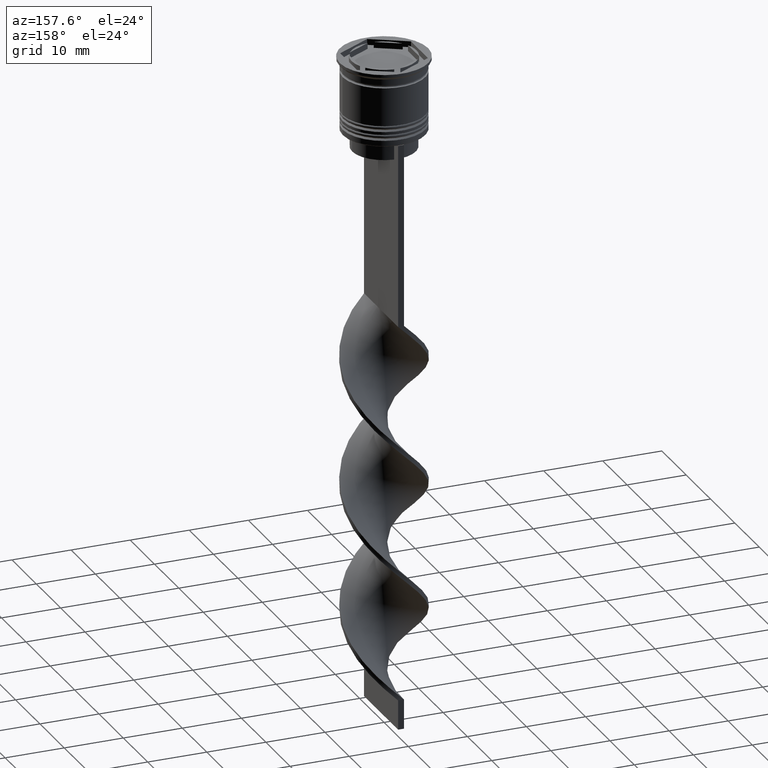
[diagram: clean part render]
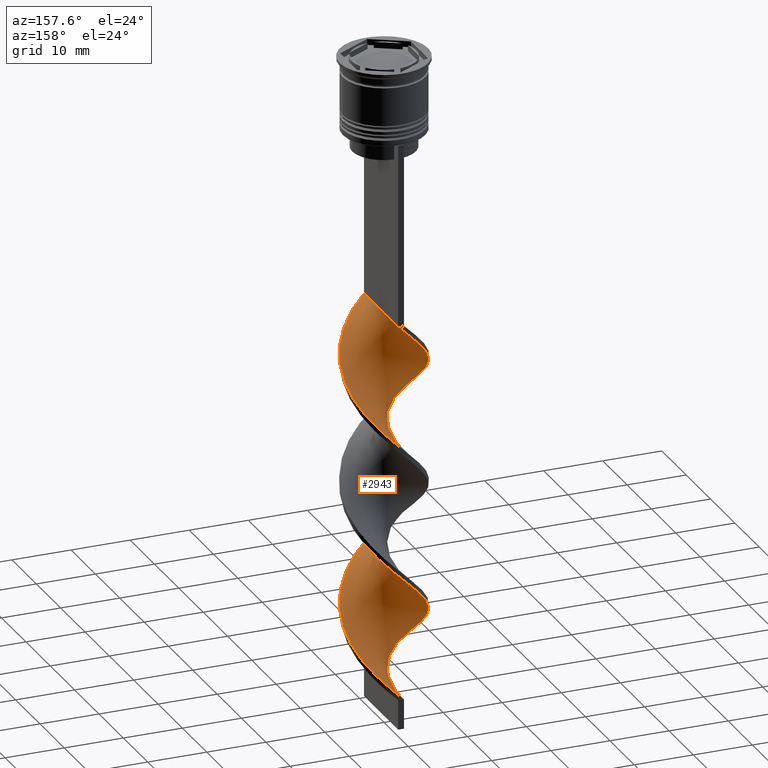
[diagram: same view with one face highlighted and labeled with its STEP entity id]
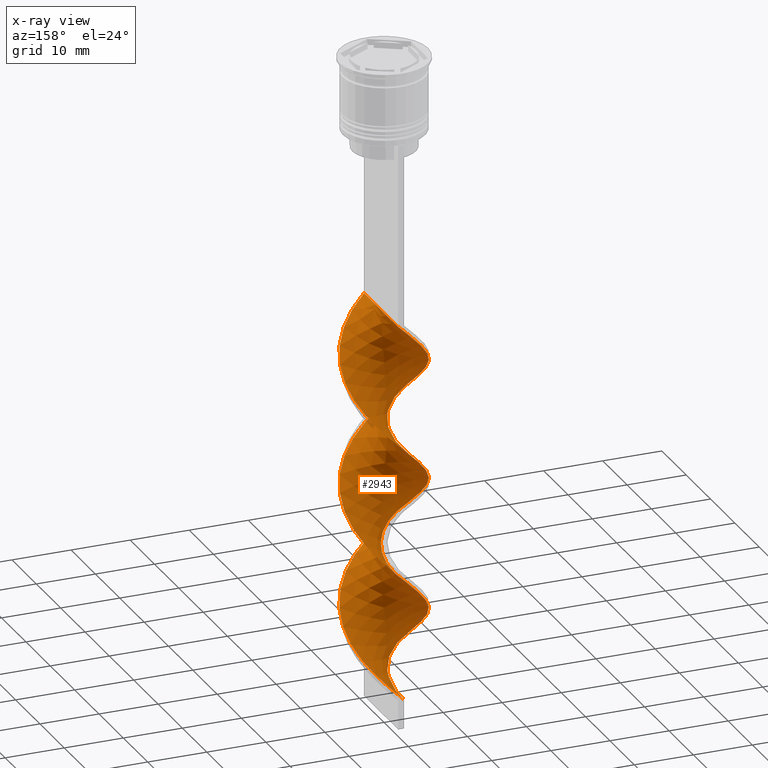
[diagram: x-ray of the same camera — body ghosted, the highlighted face saturated]
A machine part, auxiliary view. The second image highlights one B-rep face of the part: STEP entity #2943.
The next image is the same camera in x-ray: the body ghosted, the highlighted face saturated — about 0% of this face is hidden behind the body in this view.
In plain terms, the highlighted face is a freeform B-spline surface patch.
Its self-contained STEP definition (entity closure, byte-faithful):
#9 = CARTESIAN_POINT ( 'NONE',  ( 2.160680558725929679, -6.676934889838582521, -45.14102564102563520 ) ) ;
#15 = CARTESIAN_POINT ( 'NONE',  ( -4.267603233600016921, 5.571136566318108052, -91.08974358974359120 ) ) ;
#32 = CARTESIAN_POINT ( 'NONE',  ( -4.944061684284418057, 5.052955718088663062, -91.91025641025643722 ) ) ;
#46 = CARTESIAN_POINT ( 'NONE',  ( -5.476854687890019058, 4.387945160064921524, -50.06410256410256210 ) ) ;
#63 = CARTESIAN_POINT ( 'NONE',  ( -6.044919434621174759, -3.564961294171263173, -58.26923076923076650 ) ) ;
#80 = CARTESIAN_POINT ( 'NONE',  ( 4.944061684284417169, -5.052955718088663062, -70.57692307692306599 ) ) ;
#81 = CARTESIAN_POINT ( 'NONE',  ( -4.267603233600016921, 5.571136566318108052, -48.42307692307691269 ) ) ;
#90 = CARTESIAN_POINT ( 'NONE',  ( -6.044919434621171206, 3.564961294171262285, -71.39743589743588359 ) ) ;
#91 = CARTESIAN_POINT ( 'NONE',  ( 6.044919434621171206, -3.564961294171262285, -92.73076923076922640 ) ) ;
#94 = CARTESIAN_POINT ( 'NONE',  ( -4.944061684284418057, 5.052955718088663062, -49.24358974358973740 ) ) ;
#108 = CARTESIAN_POINT ( 'NONE',  ( -5.476854687890019058, 4.387945160064921524, -92.73076923076922640 ) ) ;
#111 = CARTESIAN_POINT ( 'NONE',  ( 6.967048179568297250, -1.198476987909310010, -95.19230769230769340 ) ) ;
#123 = CARTESIAN_POINT ( 'NONE',  ( 6.967048179568298139, -1.198476987909309788, -95.19230769230769340 ) ) ;
#131 = CARTESIAN_POINT ( 'NONE',  ( -6.477784105070039544, 2.830975188000776743, -72.21794871794871540 ) ) ;
#132 = EDGE_CURVE ( 'NONE', #2150, #1348, #403, .T. ) ;
#134 = CARTESIAN_POINT ( 'NONE',  ( 6.725974819057651821, 2.176550059239734658, -98.47435897435896379 ) ) ;
#150 = CARTESIAN_POINT ( 'NONE',  ( 7.009230458814037057, -0.3474023247382352353, -96.01282051282051100 ) ) ;
#154 = CARTESIAN_POINT ( 'NONE',  ( -0.3499538825558274335, -7.060710991611127696, -85.34615384615385381 ) ) ;
#166 = CARTESIAN_POINT ( 'NONE',  ( 6.722416142319168841, -2.014726087955042377, -94.37179487179486159 ) ) ;
#170 = CARTESIAN_POINT ( 'NONE',  ( 2.160680558725929679, -6.676934889838582521, -87.80769230769230660 ) ) ;
#175 = CARTESIAN_POINT ( 'NONE',  ( 2.971407234896035643, -6.414580771288298955, -88.62820512820512420 ) ) ;
#188 = CARTESIAN_POINT ( 'NONE',  ( 4.944061684284416280, 5.052955718088656845, -101.7564102564102484 ) ) ;
#195 = CARTESIAN_POINT ( 'NONE',  ( 5.016113981771114005, -4.908013908077308862, -48.42307692307691269 ) ) ;
#198 = CARTESIAN_POINT ( 'NONE',  ( -2.971407234896033422, 6.414580771288299843, -67.29487179487178139 ) ) ;
#212 = CARTESIAN_POINT ( 'NONE',  ( 5.476854687890019058, -4.387945160064921524, -71.39743589743588359 ) ) ;
#230 = CARTESIAN_POINT ( 'NONE',  ( -3.695790217132986832, -5.965830593550586869, -104.2179487179487012 ) ) ;
#255 = CARTESIAN_POINT ( 'NONE',  ( 2.971407234896040972, 6.414580771288303396, -83.70512820512820440 ) ) ;
#272 = CARTESIAN_POINT ( 'NONE',  ( 6.477784105070047538, 2.830975188000770970, -78.78205128205127039 ) ) ;
#289 = CARTESIAN_POINT ( 'NONE',  ( -6.367811255276637716, 2.949742330640459098, -94.37179487179486159 ) ) ;
#291 = CARTESIAN_POINT ( 'NONE',  ( 2.160680558725929679, -6.676934889838582521, -87.80769230769230660 ) ) ;
#306 = VECTOR ( 'NONE', #1121, 1000.000000000000000 ) ;
#311 = CARTESIAN_POINT ( 'NONE',  ( 7.051412738059782193, -0.5036723384328427588, -75.50000000000000000 ) ) ;
#329 = CARTESIAN_POINT ( 'NONE',  ( -6.009647691495618282, -3.722934602041173324, -78.78205128205127039 ) ) ;
#342 = CARTESIAN_POINT ( 'NONE',  ( 2.971407234896040528, 6.414580771288303396, -83.70512820512820440 ) ) ;
#354 = CARTESIAN_POINT ( 'NONE',  ( -2.029523600043933396, 6.771790116641159152, -45.96153846153845990 ) ) ;
#356 = CARTESIAN_POINT ( 'NONE',  ( -2.810334191479775701, 6.430553765594355653, -46.78205128205127750 ) ) ;
#387 = CARTESIAN_POINT ( 'NONE',  ( -5.612054764172298427, 4.298947400341751823, -70.57692307692306599 ) ) ;
#403 =( BOUNDED_CURVE ( )  B_SPLINE_CURVE ( 2, ( #1053, #478, #2143, #3267, #779, #2383, #195, #497, #3572, #2362, #1299, #3484, #440, #1015, #733, #3605, #2423, #3549, #2292, #3366, #1970, #1433, #2279, #3413, #1436, #1419, #1494, #3222, #3243, #198, #696, #687, #3217, #1836, #90, #131, #2344, #693, #1128, #2276, #1159, #864, #3067, #329, #2258, #3104, #2407, #3532, #2925, #3025, #543, #154, #3329, #2366, #291, #175, #3490, #1659, #2388, #2359, #91, #1384, #166, #123, #3076, #2398, #1239, #2116, #2933, #1269, #3256, #188, #2079, #1554, #1010, #1832, #1254, #2918, #1502 ),
 .UNSPECIFIED., .F., .T. ) 
 B_SPLINE_CURVE_WITH_KNOTS ( ( 3, 2, 2, 2, 2, 2, 2, 2, 2, 2, 2, 2, 2, 2, 2, 2, 2, 2, 2, 2, 2, 2, 2, 2, 2, 2, 2, 2, 2, 2, 2, 2, 2, 2, 2, 2, 2, 2, 2, 3 ),
 ( 0.000000000000000000, 0.01923076923076923184, 0.03846153846153846367, 0.05769230769230768857, 0.07692307692307692735, 0.09615384615384615918, 0.1153846153846153771, 0.1346153846153846090, 0.1538461538461538547, 0.1730769230769230449, 0.1923076923076923184, 0.2115384615384615363, 0.2307692307692307543, 0.2500000000000000000, 0.2692307692307692180, 0.2884615384615384359, 0.3076923076923077094, 0.3269230769230769273, 0.3461538461538460898, 0.3653846153846153633, 0.3846153846153846367, 0.4038461538461539102, 0.4230769230769230727, 0.4423076923076922906, 0.4615384615384615086, 0.4807692307692307820, 0.5000000000000000000, 0.5192307692307692735, 0.5384615384615384359, 0.5576923076923077094, 0.5769230769230768718, 0.5961538461538461453, 0.6153846153846154188, 0.6346153846153845812, 0.6538461538461538547, 0.6730769230769230171, 0.6923076923076921796, 0.7115384615384615641, 0.7307692307692307265, 0.7500000000000000000 ),
 .UNSPECIFIED. ) 
 CURVE ( )  GEOMETRIC_REPRESENTATION_ITEM ( )  RATIONAL_B_SPLINE_CURVE ( ( 1.000000000000000000, 0.9927088740980539727, 1.000000000000000000, 0.9927088740980539727, 1.000000000000000000, 0.9927088740980539727, 1.000000000000000000, 0.9927088740980539727, 1.000000000000000000, 0.9927088740980539727, 1.000000000000000000, 0.9927088740980539727, 1.000000000000000000, 0.9927088740980539727, 1.000000000000000000, 0.9927088740980539727, 1.000000000000000000, 0.9927088740980539727, 1.000000000000000000, 0.9927088740980539727, 1.000000000000000000, 0.9927088740980539727, 1.000000000000000000, 0.9927088740980539727, 1.000000000000000000, 0.9927088740980539727, 1.000000000000000000, 0.9927088740980539727, 1.000000000000000000, 0.9927088740980539727, 1.000000000000000000, 0.9927088740980539727, 1.000000000000000000, 0.9927088740980539727, 1.000000000000000000, 0.9927088740980539727, 1.000000000000000000, 0.9927088740980539727, 1.000000000000000000, 0.9927088740980539727, 1.000000000000000000, 0.9927088740980539727, 1.000000000000000000, 0.9927088740980539727, 1.000000000000000000, 0.9927088740980539727, 1.000000000000000000, 0.9927088740980539727, 1.000000000000000000, 0.9927088740980539727, 1.000000000000000000, 0.9927088740980539727, 1.000000000000000000, 0.9927088740980539727, 1.000000000000000000, 0.9927088740980539727, 1.000000000000000000, 0.9927088740980539727, 1.000000000000000000, 0.9927088740980539727, 1.000000000000000000, 0.9927088740980539727, 1.000000000000000000, 0.9927088740980539727, 1.000000000000000000, 0.9927088740980539727, 1.000000000000000000, 0.9927088740980539727, 1.000000000000000000, 0.9927088740980539727, 1.000000000000000000, 0.9927088740980539727, 1.000000000000000000, 0.9927088740980539727, 1.000000000000000000, 0.9927088740980539727, 1.000000000000000000, 0.9927088740980539727, 1.000000000000000000 ) ) 
 REPRESENTATION_ITEM ( '' )  );
#404 = CARTESIAN_POINT ( 'NONE',  ( -2.160680558725933675, -6.676934889838586962, -105.8589743589743506 ) ) ;
#407 = CARTESIAN_POINT ( 'NONE',  ( -2.160680558725927458, 6.676934889838583409, -66.47435897435896379 ) ) ;
#426 = CARTESIAN_POINT ( 'NONE',  ( -4.944061684284418057, -5.052955718088653292, -80.42307692307691980 ) ) ;
#440 = CARTESIAN_POINT ( 'NONE',  ( 7.009230458814037057, -0.3474023247382352353, -53.34615384615383959 ) ) ;
#441 = CARTESIAN_POINT ( 'NONE',  ( 6.722416142319168841, -2.014726087955042377, -94.37179487179486159 ) ) ;
#454 = CARTESIAN_POINT ( 'NONE',  ( 6.009647691495616506, 3.722934602041176433, -100.1153846153846274 ) ) ;
#461 = EDGE_LOOP ( 'NONE', ( #1845, #1472, #1018, #790 ) ) ;
#475 = CARTESIAN_POINT ( 'NONE',  ( -1.349953882555827045, -6.939289008388872304, -106.6794871794871682 ) ) ;
#478 = CARTESIAN_POINT ( 'NONE',  ( 1.349953882555823492, -6.939289008388866975, -44.32051282051282470 ) ) ;
#493 = CARTESIAN_POINT ( 'NONE',  ( 2.029523600043930731, -6.771790116641160040, -67.29487179487178139 ) ) ;
#497 = CARTESIAN_POINT ( 'NONE',  ( 5.612054764172300203, -4.298947400341750047, -49.24358974358974450 ) ) ;
#515 = CARTESIAN_POINT ( 'NONE',  ( 6.722416142319175059, 2.014726087955042821, -77.96153846153845279 ) ) ;
#538 = CARTESIAN_POINT ( 'NONE',  ( 7.009230458814042386, 0.3474023247382295732, -76.32051282051281760 ) ) ;
#543 = CARTESIAN_POINT ( 'NONE',  ( -1.189738741299884106, -6.916250554126139427, -84.52564102564103621 ) ) ;
#560 = CARTESIAN_POINT ( 'NONE',  ( -4.944061684284418057, 5.052955718088663062, -91.91025641025643722 ) ) ;
#563 = CARTESIAN_POINT ( 'NONE',  ( -3.591144782915618006, 6.089317414547553931, -90.26923076923077360 ) ) ;
#572 = CARTESIAN_POINT ( 'NONE',  ( 6.044919434621171206, -3.564961294171262285, -50.06410256410256210 ) ) ;
#576 = CARTESIAN_POINT ( 'NONE',  ( -1.189738741299878777, 6.916250554126145644, -45.14102564102563520 ) ) ;
#594 = CARTESIAN_POINT ( 'NONE',  ( -4.944061684284418057, 5.052955718088663062, -49.24358974358974450 ) ) ;
#608 = CARTESIAN_POINT ( 'NONE',  ( 3.695790217132989941, 5.965830593550585093, -82.88461538461537259 ) ) ;
#621 = CARTESIAN_POINT ( 'NONE',  ( -0.3499538825558239363, 7.060710991611133025, -44.32051282051282470 ) ) ;
#636 = CARTESIAN_POINT ( 'NONE',  ( -0.4999999999999996669, 2.333333333333331261, -107.5000000000000000 ) ) ;
#643 = CARTESIAN_POINT ( 'NONE',  ( -5.476854687890019058, 4.387945160064921524, -50.06410256410256210 ) ) ;
#656 = CARTESIAN_POINT ( 'NONE',  ( -5.612054764172305532, -4.298947400341750935, -101.7564102564102484 ) ) ;
#659 = CARTESIAN_POINT ( 'NONE',  ( 5.476854687890015505, 4.387945160064917083, -58.26923076923076650 ) ) ;
#671 = CARTESIAN_POINT ( 'NONE',  ( -3.591144782915616673, -6.089317414547548601, -82.06410256410255499 ) ) ;
#687 = CARTESIAN_POINT ( 'NONE',  ( -4.420173199369929584, 5.517080415812868566, -68.93589743589743080 ) ) ;
#692 = CARTESIAN_POINT ( 'NONE',  ( 6.725974819057651821, 2.176550059239734658, -55.80769230769230660 ) ) ;
#693 = CARTESIAN_POINT ( 'NONE',  ( -6.967048179568297250, 1.198476987909309344, -73.85897435897436480 ) ) ;
#694 = CARTESIAN_POINT ( 'NONE',  ( -2.971407234896040084, -6.414580771288303396, -105.0384615384615330 ) ) ;
#696 = CARTESIAN_POINT ( 'NONE',  ( -3.695790217132982836, 5.965830593550583316, -68.11538461538459899 ) ) ;
#714 = CARTESIAN_POINT ( 'NONE',  ( -5.476854687890015505, -4.387945160064916195, -79.60256410256410220 ) ) ;
#733 = CARTESIAN_POINT ( 'NONE',  ( 6.888693778558713454, 1.340111198836287043, -54.98717948717948190 ) ) ;
#734 = CARTESIAN_POINT ( 'NONE',  ( 5.016113981771114005, -4.908013908077308862, -91.08974358974359120 ) ) ;
#774 = CARTESIAN_POINT ( 'NONE',  ( -6.967048179568301691, -1.198476987909310898, -98.47435897435896379 ) ) ;
#779 = CARTESIAN_POINT ( 'NONE',  ( 3.695790217132983280, -5.965830593550583316, -46.78205128205127750 ) ) ;
#788 =( BOUNDED_CURVE ( )  B_SPLINE_CURVE ( 2, ( #1714, #621, #576, #354, #1129, #1661, #1417, #594, #46, #1700, #2547, #2810, #1434, #1179, #2531, #2226, #879, #1725, #63, #1160, #1143, #2280, #865, #2826, #2771, #3401, #1959, #2260, #3383, #2243, #3367, #1191, #2838, #80, #1463, #1942, #896, #1989, #1396, #311, #1972, #2568, #1678, #2293, #3068, #2499, #2517, #3105, #608, #342, #912, #1446, #2002, #846, #3052, #2790, #3087, #563, #15, #32, #108, #2684, #3427, #1853, #1740, #2133, #2884, #2327, #1046, #927, #2305, #656, #941, #1476, #1203, #2013, #404, #1031, #2032 ),
 .UNSPECIFIED., .F., .T. ) 
 B_SPLINE_CURVE_WITH_KNOTS ( ( 3, 2, 2, 2, 2, 2, 2, 2, 2, 2, 2, 2, 2, 2, 2, 2, 2, 2, 2, 2, 2, 2, 2, 2, 2, 2, 2, 2, 2, 2, 2, 2, 2, 2, 2, 2, 2, 2, 2, 3 ),
 ( 0.000000000000000000, 0.01923076923076923184, 0.03846153846153846367, 0.05769230769230768857, 0.07692307692307692735, 0.09615384615384615918, 0.1153846153846153771, 0.1346153846153846090, 0.1538461538461538547, 0.1730769230769230449, 0.1923076923076923184, 0.2115384615384615363, 0.2307692307692307543, 0.2500000000000000000, 0.2692307692307692180, 0.2884615384615384359, 0.3076923076923077094, 0.3269230769230769273, 0.3461538461538460898, 0.3653846153846153633, 0.3846153846153846367, 0.4038461538461539102, 0.4230769230769230727, 0.4423076923076922906, 0.4615384615384615086, 0.4807692307692307820, 0.5000000000000000000, 0.5192307692307692735, 0.5384615384615384359, 0.5576923076923077094, 0.5769230769230768718, 0.5961538461538461453, 0.6153846153846154188, 0.6346153846153845812, 0.6538461538461538547, 0.6730769230769230171, 0.6923076923076921796, 0.7115384615384615641, 0.7307692307692307265, 0.7500000000000000000 ),
 .UNSPECIFIED. ) 
 CURVE ( )  GEOMETRIC_REPRESENTATION_ITEM ( )  RATIONAL_B_SPLINE_CURVE ( ( 1.000000000000000000, 0.9927088740980539727, 1.000000000000000000, 0.9927088740980539727, 1.000000000000000000, 0.9927088740980539727, 1.000000000000000000, 0.9927088740980539727, 1.000000000000000000, 0.9927088740980539727, 1.000000000000000000, 0.9927088740980539727, 1.000000000000000000, 0.9927088740980539727, 1.000000000000000000, 0.9927088740980539727, 1.000000000000000000, 0.9927088740980539727, 1.000000000000000000, 0.9927088740980539727, 1.000000000000000000, 0.9927088740980539727, 1.000000000000000000, 0.9927088740980539727, 1.000000000000000000, 0.9927088740980539727, 1.000000000000000000, 0.9927088740980539727, 1.000000000000000000, 0.9927088740980539727, 1.000000000000000000, 0.9927088740980539727, 1.000000000000000000, 0.9927088740980539727, 1.000000000000000000, 0.9927088740980539727, 1.000000000000000000, 0.9927088740980539727, 1.000000000000000000, 0.9927088740980539727, 1.000000000000000000, 0.9927088740980539727, 1.000000000000000000, 0.9927088740980539727, 1.000000000000000000, 0.9927088740980539727, 1.000000000000000000, 0.9927088740980539727, 1.000000000000000000, 0.9927088740980539727, 1.000000000000000000, 0.9927088740980539727, 1.000000000000000000, 0.9927088740980539727, 1.000000000000000000, 0.9927088740980539727, 1.000000000000000000, 0.9927088740980539727, 1.000000000000000000, 0.9927088740980539727, 1.000000000000000000, 0.9927088740980539727, 1.000000000000000000, 0.9927088740980539727, 1.000000000000000000, 0.9927088740980539727, 1.000000000000000000, 0.9927088740980539727, 1.000000000000000000, 0.9927088740980539727, 1.000000000000000000, 0.9927088740980539727, 1.000000000000000000, 0.9927088740980539727, 1.000000000000000000, 0.9927088740980539727, 1.000000000000000000, 0.9927088740980539727, 1.000000000000000000 ) ) 
 REPRESENTATION_ITEM ( '' )  );
#790 = ORIENTED_EDGE ( 'NONE', *, *, #1427, .F. ) ;
#797 = CARTESIAN_POINT ( 'NONE',  ( -1.349953882555827045, -6.939289008388872304, -64.01282051282051100 ) ) ;
#814 = CARTESIAN_POINT ( 'NONE',  ( -4.267603233600016921, 5.571136566318108052, -91.08974358974359120 ) ) ;
#834 = CARTESIAN_POINT ( 'NONE',  ( 0.5000000000000000000, -6.999999999999997335, -43.50000000000000000 ) ) ;
#837 = CARTESIAN_POINT ( 'NONE',  ( 4.420173199369935801, 5.517080415812870342, -82.06410256410255499 ) ) ;
#846 = CARTESIAN_POINT ( 'NONE',  ( -0.3499538825558239363, 7.060710991611133025, -86.98717948717948900 ) ) ;
#860 = CARTESIAN_POINT ( 'NONE',  ( 1.349953882555823492, -6.939289008388866975, -44.32051282051282470 ) ) ;
#864 = CARTESIAN_POINT ( 'NONE',  ( -6.725974819057652709, -2.176550059239732438, -77.14102564102563520 ) ) ;
#865 = CARTESIAN_POINT ( 'NONE',  ( -3.695790217132986832, -5.965830593550586869, -61.55128205128204399 ) ) ;
#879 = CARTESIAN_POINT ( 'NONE',  ( -6.722416142319174170, -2.014726087955041933, -56.62820512820513130 ) ) ;
#896 = CARTESIAN_POINT ( 'NONE',  ( 6.367811255276637716, -2.949742330640459542, -73.03846153846153300 ) ) ;
#909 = B_SPLINE_CURVE_WITH_KNOTS ( 'NONE', 3,
 ( #2128, #2854, #636, #3142 ),
 .UNSPECIFIED., .F., .F.,
 ( 4, 4 ),
 ( 0.000000000000000000, 1.000000000000000000 ),
 .UNSPECIFIED. ) ;
#912 = CARTESIAN_POINT ( 'NONE',  ( 2.160680558725937228, 6.676934889838585185, -84.52564102564103621 ) ) ;
#927 = CARTESIAN_POINT ( 'NONE',  ( -6.477784105070046650, -2.830975188000774523, -100.1153846153846132 ) ) ;
#941 = CARTESIAN_POINT ( 'NONE',  ( -5.016113981771120223, -4.908013908077310639, -102.5769230769230660 ) ) ;
#944 = CARTESIAN_POINT ( 'NONE',  ( -2.029523600043934728, -6.771790116641152935, -83.70512820512820440 ) ) ;
#961 = CARTESIAN_POINT ( 'NONE',  ( 0.3499538825558265454, 7.060710991611127696, -64.01282051282051100 ) ) ;
#978 = CARTESIAN_POINT ( 'NONE',  ( 5.612054764172300203, -4.298947400341750047, -91.91025641025643722 ) ) ;
#979 = CARTESIAN_POINT ( 'NONE',  ( -4.420173199369934913, -5.517080415812870342, -103.3974358974358694 ) ) ;
#995 = CARTESIAN_POINT ( 'NONE',  ( -7.051412738059776864, -0.5036723384328400943, -75.49999999999998579 ) ) ;
#1010 = CARTESIAN_POINT ( 'NONE',  ( 2.810334191479774812, 6.430553765594350324, -104.2179487179487012 ) ) ;
#1015 = CARTESIAN_POINT ( 'NONE',  ( 7.051412738059777752, 0.5036723384328409825, -54.16666666666666430 ) ) ;
#1016 = CARTESIAN_POINT ( 'NONE',  ( -3.695790217132982836, 5.965830593550583316, -68.11538461538459899 ) ) ;
#1018 = ORIENTED_EDGE ( 'NONE', *, *, #3591, .F. ) ;
#1031 = CARTESIAN_POINT ( 'NONE',  ( -1.349953882555827045, -6.939289008388872304, -106.6794871794871824 ) ) ;
#1046 = CARTESIAN_POINT ( 'NONE',  ( -6.722416142319174170, -2.014726087955041933, -99.29487179487178139 ) ) ;
#1049 = CARTESIAN_POINT ( 'NONE',  ( -6.009647691495620947, 3.722934602041179986, -93.55128205128204399 ) ) ;
#1053 = CARTESIAN_POINT ( 'NONE',  ( 0.5000000000000000000, -6.999999999999997335, -43.50000000000000000 ) ) ;
#1073 = CARTESIAN_POINT ( 'NONE',  ( -2.810334191479775701, 6.430553765594355653, -89.44871794871794179 ) ) ;
#1090 = CARTESIAN_POINT ( 'NONE',  ( -5.612054764172305532, -4.298947400341750935, -59.08974358974359120 ) ) ;
#1105 = CARTESIAN_POINT ( 'NONE',  ( -2.160680558725933675, -6.676934889838586962, -63.19230769230768630 ) ) ;
#1121 = DIRECTION ( 'NONE',  ( 0.000000000000000000, 1.000000000000000000, 0.000000000000000000 ) ) ;
#1124 = CARTESIAN_POINT ( 'NONE',  ( 7.009230458814037057, -0.3474023247382352353, -53.34615384615383959 ) ) ;
#1128 = CARTESIAN_POINT ( 'NONE',  ( -7.009230458814037057, 0.3474023247382377333, -74.67948717948718240 ) ) ;
#1129 = CARTESIAN_POINT ( 'NONE',  ( -2.810334191479775701, 6.430553765594355653, -46.78205128205127750 ) ) ;
#1143 = CARTESIAN_POINT ( 'NONE',  ( -5.016113981771120223, -4.908013908077310639, -59.91025641025640880 ) ) ;
#1159 = CARTESIAN_POINT ( 'NONE',  ( -6.888693778558715231, -1.340111198836283046, -76.32051282051281760 ) ) ;
#1160 = CARTESIAN_POINT ( 'NONE',  ( -5.612054764172305532, -4.298947400341750935, -59.08974358974358410 ) ) ;
#1179 = CARTESIAN_POINT ( 'NONE',  ( -7.051412738059782193, 0.5036723384328418707, -54.16666666666666430 ) ) ;
#1191 = CARTESIAN_POINT ( 'NONE',  ( 3.591144782915617117, -6.089317414547554819, -68.93589743589743080 ) ) ;
#1203 = CARTESIAN_POINT ( 'NONE',  ( -3.695790217132986832, -5.965830593550586869, -104.2179487179487012 ) ) ;
#1205 = CARTESIAN_POINT ( 'NONE',  ( -4.420173199369929584, 5.517080415812867678, -68.93589743589743080 ) ) ;
#1224 = CARTESIAN_POINT ( 'NONE',  ( 4.267603233600016033, 5.571136566318101835, -102.5769230769230660 ) ) ;
#1239 = CARTESIAN_POINT ( 'NONE',  ( 6.888693778558713454, 1.340111198836287043, -97.65384615384614619 ) ) ;
#1243 = CARTESIAN_POINT ( 'NONE',  ( 6.477784105070041321, -2.830975188000772746, -93.55128205128204399 ) ) ;
#1254 = CARTESIAN_POINT ( 'NONE',  ( 1.189738741299880109, 6.916250554126139427, -105.8589743589743506 ) ) ;
#1260 = CARTESIAN_POINT ( 'NONE',  ( -4.267603233600016921, -5.571136566318100947, -81.24358974358973740 ) ) ;
#1269 = CARTESIAN_POINT ( 'NONE',  ( 6.009647691495615618, 3.722934602041176877, -100.1153846153846132 ) ) ;
#1277 = CARTESIAN_POINT ( 'NONE',  ( 7.051412738059776864, 0.5036723384328409825, -96.83333333333332860 ) ) ;
#1299 = CARTESIAN_POINT ( 'NONE',  ( 6.722416142319168841, -2.014726087955042377, -51.70512820512820440 ) ) ;
#1309 = VERTEX_POINT ( 'NONE', #1366 ) ;
#1315 = CARTESIAN_POINT ( 'NONE',  ( -4.420173199369934913, -5.517080415812870342, -60.73076923076922640 ) ) ;
#1336 = CARTESIAN_POINT ( 'NONE',  ( 0.5000000000000000000, -6.999999999999997335, -43.50000000000000000 ) ) ;
#1348 = VERTEX_POINT ( 'NONE', #2482 ) ;
#1361 = CARTESIAN_POINT ( 'NONE',  ( -0.3499538825558239363, 7.060710991611133025, -86.98717948717948900 ) ) ;
#1366 = CARTESIAN_POINT ( 'NONE',  ( -0.5000000000000008882, -7.000000000000002665, -107.5000000000000000 ) ) ;
#1378 = CARTESIAN_POINT ( 'NONE',  ( 0.5000000000000000000, 7.000000000000002665, -86.16666666666667140 ) ) ;
#1384 = CARTESIAN_POINT ( 'NONE',  ( 6.477784105070041321, -2.830975188000772746, -93.55128205128204399 ) ) ;
#1392 = CARTESIAN_POINT ( 'NONE',  ( 6.722416142319168841, -2.014726087955042377, -51.70512820512820440 ) ) ;
#1396 = CARTESIAN_POINT ( 'NONE',  ( 6.888693778558718783, -1.340111198836292372, -74.67948717948718240 ) ) ;
#1417 = CARTESIAN_POINT ( 'NONE',  ( -4.267603233600016921, 5.571136566318108052, -48.42307692307691269 ) ) ;
#1419 = CARTESIAN_POINT ( 'NONE',  ( 0.3499538825558265454, 7.060710991611127696, -64.01282051282051100 ) ) ;
#1427 = EDGE_CURVE ( 'NONE', #3357, #1309, #788, .T. ) ;
#1433 = CARTESIAN_POINT ( 'NONE',  ( 3.591144782915615785, 6.089317414547548601, -60.73076923076922640 ) ) ;
#1434 = CARTESIAN_POINT ( 'NONE',  ( -6.888693778558718783, 1.340111198836290152, -53.34615384615383959 ) ) ;
#1436 = CARTESIAN_POINT ( 'NONE',  ( 1.189738741299880109, 6.916250554126139427, -63.19230769230768630 ) ) ;
#1446 = CARTESIAN_POINT ( 'NONE',  ( 1.349953882555827933, 6.939289008388872304, -85.34615384615385381 ) ) ;
#1463 = CARTESIAN_POINT ( 'NONE',  ( 5.476854687890019058, -4.387945160064921524, -71.39743589743588359 ) ) ;
#1472 = ORIENTED_EDGE ( 'NONE', *, *, #132, .T. ) ;
#1476 = CARTESIAN_POINT ( 'NONE',  ( -4.420173199369934913, -5.517080415812871230, -103.3974358974358836 ) ) ;
#1492 = CARTESIAN_POINT ( 'NONE',  ( -6.967048179568296362, 1.198476987909309566, -73.85897435897436480 ) ) ;
#1493 = CARTESIAN_POINT ( 'NONE',  ( -7.009230458814042386, -0.3474023247382335144, -54.98717948717948190 ) ) ;
#1494 = CARTESIAN_POINT ( 'NONE',  ( -0.4999999999999991673, 6.999999999999997335, -64.83333333333332860 ) ) ;
#1502 = CARTESIAN_POINT ( 'NONE',  ( -0.4999999999999991673, 6.999999999999997335, -107.5000000000000000 ) ) ;
#1512 = CARTESIAN_POINT ( 'NONE',  ( -6.009647691495618282, -3.722934602041173324, -78.78205128205127039 ) ) ;
#1529 = CARTESIAN_POINT ( 'NONE',  ( 6.044919434621171206, -3.564961294171262285, -92.73076923076922640 ) ) ;
#1542 = CARTESIAN_POINT ( 'NONE',  ( -1.349953882555821938, 6.939289008388866975, -65.65384615384614619 ) ) ;
#1554 = CARTESIAN_POINT ( 'NONE',  ( 3.591144782915615785, 6.089317414547548601, -103.3974358974358836 ) ) ;
#1564 = CARTESIAN_POINT ( 'NONE',  ( 6.367811255276634164, 2.949742330640454657, -99.29487179487178139 ) ) ;
#1582 = CARTESIAN_POINT ( 'NONE',  ( -0.5000000000000008882, -7.000000000000002665, -107.5000000000000000 ) ) ;
#1598 = CARTESIAN_POINT ( 'NONE',  ( 6.367811255276637716, -2.949742330640459542, -73.03846153846153300 ) ) ;
#1616 = CARTESIAN_POINT ( 'NONE',  ( 6.888693778558718783, -1.340111198836292372, -74.67948717948718240 ) ) ;
#1639 = CARTESIAN_POINT ( 'NONE',  ( 3.695790217132989941, 5.965830593550585093, -82.88461538461537259 ) ) ;
#1646 = EDGE_CURVE ( 'NONE', #2150, #3357, #3563, .T. ) ;
#1657 = CARTESIAN_POINT ( 'NONE',  ( -5.476854687890019058, 4.387945160064921524, -92.73076923076922640 ) ) ;
#1659 = CARTESIAN_POINT ( 'NONE',  ( 4.420173199369930472, -5.517080415812867678, -90.26923076923077360 ) ) ;
#1661 = CARTESIAN_POINT ( 'NONE',  ( -3.591144782915618006, 6.089317414547553931, -47.60256410256409509 ) ) ;
#1672 = CARTESIAN_POINT ( 'NONE',  ( 6.477784105070041321, -2.830975188000772746, -50.88461538461538680 ) ) ;
#1678 = CARTESIAN_POINT ( 'NONE',  ( 6.722416142319175059, 2.014726087955042821, -77.96153846153845279 ) ) ;
#1700 = CARTESIAN_POINT ( 'NONE',  ( -6.009647691495620947, 3.722934602041179986, -50.88461538461537970 ) ) ;
#1714 = CARTESIAN_POINT ( 'NONE',  ( 0.5000000000000000000, 7.000000000000002665, -43.50000000000000000 ) ) ;
#1725 = CARTESIAN_POINT ( 'NONE',  ( -6.477784105070046650, -2.830975188000774523, -57.44871794871794890 ) ) ;
#1738 = CARTESIAN_POINT ( 'NONE',  ( 0.5000000000000000000, -6.999999999999997335, -43.50000000000000000 ) ) ;
#1740 = CARTESIAN_POINT ( 'NONE',  ( -6.888693778558718783, 1.340111198836290152, -96.01282051282051100 ) ) ;
#1743 = CARTESIAN_POINT ( 'NONE',  ( -6.009647691495620947, 3.722934602041179986, -50.88461538461538680 ) ) ;
#1756 = CARTESIAN_POINT ( 'NONE',  ( -5.016113981771113117, 4.908013908077309750, -69.75641025641024839 ) ) ;
#1773 = CARTESIAN_POINT ( 'NONE',  ( 2.029523600043933840, 6.771790116641152935, -105.0384615384615330 ) ) ;
#1797 = CARTESIAN_POINT ( 'NONE',  ( -6.044919434621171206, 3.564961294171262285, -71.39743589743588359 ) ) ;
#1799 = CARTESIAN_POINT ( 'NONE',  ( -6.477784105070046650, -2.830975188000774079, -57.44871794871794890 ) ) ;
#1820 = CARTESIAN_POINT ( 'NONE',  ( -0.4999999999999991673, 6.999999999999997335, -107.5000000000000000 ) ) ;
#1822 = CARTESIAN_POINT ( 'NONE',  ( -6.722416142319168841, 2.014726087955043266, -73.03846153846153300 ) ) ;
#1832 = CARTESIAN_POINT ( 'NONE',  ( 2.029523600043933840, 6.771790116641152935, -105.0384615384615188 ) ) ;
#1836 = CARTESIAN_POINT ( 'NONE',  ( -5.612054764172298427, 4.298947400341751823, -70.57692307692306599 ) ) ;
#1839 = CARTESIAN_POINT ( 'NONE',  ( 2.971407234896035199, -6.414580771288298955, -88.62820512820513841 ) ) ;
#1845 = ORIENTED_EDGE ( 'NONE', *, *, #1646, .F. ) ;
#1853 = CARTESIAN_POINT ( 'NONE',  ( -6.725974819057656262, 2.176550059239736878, -95.19230769230769340 ) ) ;
#1876 = CARTESIAN_POINT ( 'NONE',  ( -5.016113981771120223, -4.908013908077310639, -102.5769230769230660 ) ) ;
#1895 =( BOUNDED_SURFACE ( )  B_SPLINE_SURFACE ( 1, 2, ( 
 ( #3117, #2586, #3415, #2841, #356, #3129, #81, #94, #643, #1743, #2310, #3431, #2038, #3148, #1493, #2603, #2686, #1799, #2752, #1090, #3569, #1315, #2767, #3325, #1105, #797, #2983, #3285, #3262, #493, #3306, #2200, #2138, #1937, #212, #3178, #1598, #2158, #1616, #1897, #538, #3000, #515, #272, #2729, #2419, #2441, #837, #1639, #255, #2708, #1914, #1378, #1361, #3020, #2463, #1073, #3048, #814, #560, #1657, #1049, #289, #3544, #2068, #3587, #2477, #774, #2345, #2181, #3602, #3467, #1876, #979, #230, #694, #2908, #475, #1582 ),
 ( #1336, #860, #9, #3064, #2784, #2221, #3346, #1956, #572, #1672, #1392, #2495, #1124, #2636, #3453, #692, #2886, #3176, #659, #2871, #3485, #3430, #2363, #2106, #3509, #961, #3147, #1542, #407, #2087, #1016, #1205, #1756, #387, #1797, #3221, #1822, #1492, #2649, #995, #2906, #2670, #3199, #1512, #714, #426, #1260, #671, #2343, #944, #2939, #2051, #3466, #2922, #170, #1839, #2602, #3159, #734, #978, #1529, #1243, #441, #111, #150, #1277, #2623, #134, #1564, #454, #2307, #2036, #1224, #2384, #2329, #1773, #2067, #3198, #1820 ) ),
 .UNSPECIFIED., .F., .F., .F. ) 
 B_SPLINE_SURFACE_WITH_KNOTS ( ( 2, 2 ),
 ( 3, 2, 2, 2, 2, 2, 2, 2, 2, 2, 2, 2, 2, 2, 2, 2, 2, 2, 2, 2, 2, 2, 2, 2, 2, 2, 2, 2, 2, 2, 2, 2, 2, 2, 2, 2, 2, 2, 2, 3 ),
 ( 0.000000000000000000, 1.000000000000000000 ),
 ( 0.000000000000000000, 0.01923076923076923184, 0.03846153846153846367, 0.05769230769230769551, 0.07692307692307692735, 0.09615384615384615918, 0.1153846153846153910, 0.1346153846153846090, 0.1538461538461538547, 0.1730769230769230727, 0.1923076923076923184, 0.2115384615384615363, 0.2307692307692307820, 0.2500000000000000000, 0.2692307692307692180, 0.2884615384615384359, 0.3076923076923077094, 0.3269230769230769273, 0.3461538461538461453, 0.3653846153846153633, 0.3846153846153846367, 0.4038461538461538547, 0.4230769230769230727, 0.4423076923076922906, 0.4615384615384615641, 0.4807692307692307820, 0.5000000000000000000, 0.5192307692307692735, 0.5384615384615384359, 0.5576923076923077094, 0.5769230769230768718, 0.5961538461538461453, 0.6153846153846154188, 0.6346153846153845812, 0.6538461538461538547, 0.6730769230769231282, 0.6923076923076922906, 0.7115384615384615641, 0.7307692307692307265, 0.7500000000000000000 ),
 .UNSPECIFIED. ) 
 GEOMETRIC_REPRESENTATION_ITEM ( )  RATIONAL_B_SPLINE_SURFACE ( (
 ( 1.000000000000000000, 0.9927088740980539727, 1.000000000000000000, 0.9927088740980539727, 1.000000000000000000, 0.9927088740980539727, 1.000000000000000000, 0.9927088740980539727, 1.000000000000000000, 0.9927088740980539727, 1.000000000000000000, 0.9927088740980539727, 1.000000000000000000, 0.9927088740980539727, 1.000000000000000000, 0.9927088740980539727, 1.000000000000000000, 0.9927088740980539727, 1.000000000000000000, 0.9927088740980539727, 1.000000000000000000, 0.9927088740980539727, 1.000000000000000000, 0.9927088740980539727, 1.000000000000000000, 0.9927088740980539727, 1.000000000000000000, 0.9927088740980539727, 1.000000000000000000, 0.9927088740980539727, 1.000000000000000000, 0.9927088740980539727, 1.000000000000000000, 0.9927088740980539727, 1.000000000000000000, 0.9927088740980539727, 1.000000000000000000, 0.9927088740980539727, 1.000000000000000000, 0.9927088740980539727, 1.000000000000000000, 0.9927088740980539727, 1.000000000000000000, 0.9927088740980539727, 1.000000000000000000, 0.9927088740980539727, 1.000000000000000000, 0.9927088740980539727, 1.000000000000000000, 0.9927088740980539727, 1.000000000000000000, 0.9927088740980539727, 1.000000000000000000, 0.9927088740980539727, 1.000000000000000000, 0.9927088740980539727, 1.000000000000000000, 0.9927088740980539727, 1.000000000000000000, 0.9927088740980539727, 1.000000000000000000, 0.9927088740980539727, 1.000000000000000000, 0.9927088740980539727, 1.000000000000000000, 0.9927088740980539727, 1.000000000000000000, 0.9927088740980539727, 1.000000000000000000, 0.9927088740980539727, 1.000000000000000000, 0.9927088740980539727, 1.000000000000000000, 0.9927088740980539727, 1.000000000000000000, 0.9927088740980539727, 1.000000000000000000, 0.9927088740980539727, 1.000000000000000000),
 ( 1.000000000000000000, 0.9927088740980539727, 1.000000000000000000, 0.9927088740980539727, 1.000000000000000000, 0.9927088740980539727, 1.000000000000000000, 0.9927088740980539727, 1.000000000000000000, 0.9927088740980539727, 1.000000000000000000, 0.9927088740980539727, 1.000000000000000000, 0.9927088740980539727, 1.000000000000000000, 0.9927088740980539727, 1.000000000000000000, 0.9927088740980539727, 1.000000000000000000, 0.9927088740980539727, 1.000000000000000000, 0.9927088740980539727, 1.000000000000000000, 0.9927088740980539727, 1.000000000000000000, 0.9927088740980539727, 1.000000000000000000, 0.9927088740980539727, 1.000000000000000000, 0.9927088740980539727, 1.000000000000000000, 0.9927088740980539727, 1.000000000000000000, 0.9927088740980539727, 1.000000000000000000, 0.9927088740980539727, 1.000000000000000000, 0.9927088740980539727, 1.000000000000000000, 0.9927088740980539727, 1.000000000000000000, 0.9927088740980539727, 1.000000000000000000, 0.9927088740980539727, 1.000000000000000000, 0.9927088740980539727, 1.000000000000000000, 0.9927088740980539727, 1.000000000000000000, 0.9927088740980539727, 1.000000000000000000, 0.9927088740980539727, 1.000000000000000000, 0.9927088740980539727, 1.000000000000000000, 0.9927088740980539727, 1.000000000000000000, 0.9927088740980539727, 1.000000000000000000, 0.9927088740980539727, 1.000000000000000000, 0.9927088740980539727, 1.000000000000000000, 0.9927088740980539727, 1.000000000000000000, 0.9927088740980539727, 1.000000000000000000, 0.9927088740980539727, 1.000000000000000000, 0.9927088740980539727, 1.000000000000000000, 0.9927088740980539727, 1.000000000000000000, 0.9927088740980539727, 1.000000000000000000, 0.9927088740980539727, 1.000000000000000000, 0.9927088740980539727, 1.000000000000000000) ) ) 
 REPRESENTATION_ITEM ( '' )  SURFACE ( )  );
#1897 = CARTESIAN_POINT ( 'NONE',  ( 7.051412738059782193, -0.5036723384328427588, -75.49999999999998579 ) ) ;
#1914 = CARTESIAN_POINT ( 'NONE',  ( 1.349953882555827933, 6.939289008388872304, -85.34615384615383959 ) ) ;
#1937 = CARTESIAN_POINT ( 'NONE',  ( 4.944061684284417169, -5.052955718088663062, -70.57692307692306599 ) ) ;
#1942 = CARTESIAN_POINT ( 'NONE',  ( 6.009647691495618282, -3.722934602041183094, -72.21794871794871540 ) ) ;
#1956 = CARTESIAN_POINT ( 'NONE',  ( 5.612054764172300203, -4.298947400341750047, -49.24358974358973740 ) ) ;
#1959 = CARTESIAN_POINT ( 'NONE',  ( -0.5000000000000008882, -7.000000000000002665, -64.83333333333332860 ) ) ;
#1970 = CARTESIAN_POINT ( 'NONE',  ( 4.267603233600016033, 5.571136566318101835, -59.91025641025640880 ) ) ;
#1972 = CARTESIAN_POINT ( 'NONE',  ( 7.009230458814042386, 0.3474023247382295732, -76.32051282051281760 ) ) ;
#1989 = CARTESIAN_POINT ( 'NONE',  ( 6.725974819057657150, -2.176550059239735546, -73.85897435897436480 ) ) ;
#2002 = CARTESIAN_POINT ( 'NONE',  ( 0.5000000000000000000, 7.000000000000002665, -86.16666666666667140 ) ) ;
#2013 = CARTESIAN_POINT ( 'NONE',  ( -2.971407234896039640, -6.414580771288303396, -105.0384615384615188 ) ) ;
#2032 = CARTESIAN_POINT ( 'NONE',  ( -0.5000000000000008882, -7.000000000000002665, -107.5000000000000000 ) ) ;
#2036 = CARTESIAN_POINT ( 'NONE',  ( 4.944061684284416280, 5.052955718088656845, -101.7564102564102484 ) ) ;
#2038 = CARTESIAN_POINT ( 'NONE',  ( -6.888693778558718783, 1.340111198836290152, -53.34615384615383959 ) ) ;
#2051 = CARTESIAN_POINT ( 'NONE',  ( -0.3499538825558274335, -7.060710991611127696, -85.34615384615383959 ) ) ;
#2067 = CARTESIAN_POINT ( 'NONE',  ( 1.189738741299880109, 6.916250554126139427, -105.8589743589743506 ) ) ;
#2068 = CARTESIAN_POINT ( 'NONE',  ( -6.888693778558718783, 1.340111198836290152, -96.01282051282051100 ) ) ;
#2079 = CARTESIAN_POINT ( 'NONE',  ( 4.267603233600016033, 5.571136566318101835, -102.5769230769230660 ) ) ;
#2087 = CARTESIAN_POINT ( 'NONE',  ( -2.971407234896032978, 6.414580771288299843, -67.29487179487178139 ) ) ;
#2106 = CARTESIAN_POINT ( 'NONE',  ( 2.029523600043933840, 6.771790116641152935, -62.37179487179486870 ) ) ;
#2116 = CARTESIAN_POINT ( 'NONE',  ( 6.725974819057651821, 2.176550059239734214, -98.47435897435896379 ) ) ;
#2128 = CARTESIAN_POINT ( 'NONE',  ( -0.5000000000000008882, -7.000000000000002665, -107.5000000000000000 ) ) ;
#2133 = CARTESIAN_POINT ( 'NONE',  ( -7.051412738059782193, 0.5036723384328418707, -96.83333333333332860 ) ) ;
#2138 = CARTESIAN_POINT ( 'NONE',  ( 4.267603233600016033, -5.571136566318108940, -69.75641025641024839 ) ) ;
#2143 = CARTESIAN_POINT ( 'NONE',  ( 2.160680558725929679, -6.676934889838582521, -45.14102564102563520 ) ) ;
#2150 = VERTEX_POINT ( 'NONE', #1738 ) ;
#2158 = CARTESIAN_POINT ( 'NONE',  ( 6.725974819057657150, -2.176550059239735990, -73.85897435897436480 ) ) ;
#2181 = CARTESIAN_POINT ( 'NONE',  ( -6.477784105070046650, -2.830975188000774079, -100.1153846153846274 ) ) ;
#2200 = CARTESIAN_POINT ( 'NONE',  ( 3.591144782915617117, -6.089317414547553931, -68.93589743589743080 ) ) ;
#2221 = CARTESIAN_POINT ( 'NONE',  ( 4.420173199369930472, -5.517080415812866789, -47.60256410256408799 ) ) ;
#2226 = CARTESIAN_POINT ( 'NONE',  ( -6.967048179568301691, -1.198476987909310676, -55.80769230769230660 ) ) ;
#2243 = CARTESIAN_POINT ( 'NONE',  ( 2.029523600043930731, -6.771790116641160040, -67.29487179487178139 ) ) ;
#2258 = CARTESIAN_POINT ( 'NONE',  ( -5.476854687890015505, -4.387945160064916195, -79.60256410256410220 ) ) ;
#2260 = CARTESIAN_POINT ( 'NONE',  ( 0.3499538825558224375, -7.060710991611133025, -65.65384615384614619 ) ) ;
#2276 = CARTESIAN_POINT ( 'NONE',  ( -7.051412738059777752, -0.5036723384328402053, -75.50000000000000000 ) ) ;
#2279 = CARTESIAN_POINT ( 'NONE',  ( 2.810334191479774812, 6.430553765594350324, -61.55128205128204399 ) ) ;
#2280 = CARTESIAN_POINT ( 'NONE',  ( -4.420173199369934913, -5.517080415812871230, -60.73076923076922640 ) ) ;
#2292 = CARTESIAN_POINT ( 'NONE',  ( 5.476854687890015505, 4.387945160064917083, -58.26923076923076650 ) ) ;
#2293 = CARTESIAN_POINT ( 'NONE',  ( 6.477784105070047538, 2.830975188000770970, -78.78205128205127039 ) ) ;
#2305 = CARTESIAN_POINT ( 'NONE',  ( -6.044919434621174759, -3.564961294171263173, -100.9358974358974308 ) ) ;
#2307 = CARTESIAN_POINT ( 'NONE',  ( 5.476854687890015505, 4.387945160064917083, -100.9358974358974308 ) ) ;
#2310 = CARTESIAN_POINT ( 'NONE',  ( -6.367811255276637716, 2.949742330640459098, -51.70512820512820440 ) ) ;
#2327 = CARTESIAN_POINT ( 'NONE',  ( -6.967048179568301691, -1.198476987909310676, -98.47435897435896379 ) ) ;
#2329 = CARTESIAN_POINT ( 'NONE',  ( 2.810334191479774812, 6.430553765594350324, -104.2179487179487012 ) ) ;
#2343 = CARTESIAN_POINT ( 'NONE',  ( -2.810334191479778365, -6.430553765594348548, -82.88461538461537259 ) ) ;
#2344 = CARTESIAN_POINT ( 'NONE',  ( -6.722416142319168841, 2.014726087955043266, -73.03846153846153300 ) ) ;
#2345 = CARTESIAN_POINT ( 'NONE',  ( -6.722416142319174170, -2.014726087955041933, -99.29487179487178139 ) ) ;
#2359 = CARTESIAN_POINT ( 'NONE',  ( 5.612054764172300203, -4.298947400341750047, -91.91025641025643722 ) ) ;
#2362 = CARTESIAN_POINT ( 'NONE',  ( 6.477784105070041321, -2.830975188000772746, -50.88461538461537970 ) ) ;
#2363 = CARTESIAN_POINT ( 'NONE',  ( 2.810334191479774812, 6.430553765594350324, -61.55128205128204399 ) ) ;
#2366 = CARTESIAN_POINT ( 'NONE',  ( 1.349953882555823492, -6.939289008388866975, -86.98717948717948900 ) ) ;
#2383 = CARTESIAN_POINT ( 'NONE',  ( 4.420173199369930472, -5.517080415812867678, -47.60256410256409509 ) ) ;
#2384 = CARTESIAN_POINT ( 'NONE',  ( 3.591144782915615785, 6.089317414547548601, -103.3974358974358694 ) ) ;
#2388 = CARTESIAN_POINT ( 'NONE',  ( 5.016113981771114005, -4.908013908077308862, -91.08974358974359120 ) ) ;
#2398 = CARTESIAN_POINT ( 'NONE',  ( 7.051412738059777752, 0.5036723384328409825, -96.83333333333332860 ) ) ;
#2407 = CARTESIAN_POINT ( 'NONE',  ( -4.267603233600016921, -5.571136566318100947, -81.24358974358973740 ) ) ;
#2419 = CARTESIAN_POINT ( 'NONE',  ( 5.612054764172307308, 4.298947400341747382, -80.42307692307691980 ) ) ;
#2423 = CARTESIAN_POINT ( 'NONE',  ( 6.367811255276634164, 2.949742330640454657, -56.62820512820513130 ) ) ;
#2441 = CARTESIAN_POINT ( 'NONE',  ( 5.016113981771121111, 4.908013908077309750, -81.24358974358973740 ) ) ;
#2463 = CARTESIAN_POINT ( 'NONE',  ( -2.029523600043933396, 6.771790116641159152, -88.62820512820513841 ) ) ;
#2477 = CARTESIAN_POINT ( 'NONE',  ( -7.009230458814042386, -0.3474023247382335144, -97.65384615384614619 ) ) ;
#2482 = CARTESIAN_POINT ( 'NONE',  ( -0.4999999999999991673, 6.999999999999997335, -107.5000000000000000 ) ) ;
#2495 = CARTESIAN_POINT ( 'NONE',  ( 6.967048179568297250, -1.198476987909310010, -52.52564102564103621 ) ) ;
#2499 = CARTESIAN_POINT ( 'NONE',  ( 5.612054764172307308, 4.298947400341747382, -80.42307692307691980 ) ) ;
#2517 = CARTESIAN_POINT ( 'NONE',  ( 5.016113981771121111, 4.908013908077309750, -81.24358974358973740 ) ) ;
#2531 = CARTESIAN_POINT ( 'NONE',  ( -7.009230458814042386, -0.3474023247382335144, -54.98717948717948190 ) ) ;
#2547 = CARTESIAN_POINT ( 'NONE',  ( -6.367811255276637716, 2.949742330640459098, -51.70512820512820440 ) ) ;
#2568 = CARTESIAN_POINT ( 'NONE',  ( 6.967048179568302579, 1.198476987909308011, -77.14102564102563520 ) ) ;
#2569 = FACE_OUTER_BOUND ( 'NONE', #461, .T. ) ;
#2586 = CARTESIAN_POINT ( 'NONE',  ( -0.3499538825558239363, 7.060710991611133025, -44.32051282051282470 ) ) ;
#2602 = CARTESIAN_POINT ( 'NONE',  ( 3.695790217132983280, -5.965830593550583316, -89.44871794871794179 ) ) ;
#2603 = CARTESIAN_POINT ( 'NONE',  ( -6.967048179568301691, -1.198476987909310898, -55.80769230769230660 ) ) ;
#2623 = CARTESIAN_POINT ( 'NONE',  ( 6.888693778558713454, 1.340111198836287043, -97.65384615384614619 ) ) ;
#2636 = CARTESIAN_POINT ( 'NONE',  ( 7.051412738059776864, 0.5036723384328409825, -54.16666666666665719 ) ) ;
#2649 = CARTESIAN_POINT ( 'NONE',  ( -7.009230458814037057, 0.3474023247382377333, -74.67948717948718240 ) ) ;
#2670 = CARTESIAN_POINT ( 'NONE',  ( -6.725974819057652709, -2.176550059239732438, -77.14102564102563520 ) ) ;
#2684 = CARTESIAN_POINT ( 'NONE',  ( -6.009647691495620947, 3.722934602041179986, -93.55128205128204399 ) ) ;
#2686 = CARTESIAN_POINT ( 'NONE',  ( -6.722416142319174170, -2.014726087955041933, -56.62820512820513130 ) ) ;
#2708 = CARTESIAN_POINT ( 'NONE',  ( 2.160680558725937228, 6.676934889838585185, -84.52564102564103621 ) ) ;
#2729 = CARTESIAN_POINT ( 'NONE',  ( 6.044919434621175647, 3.564961294171262285, -79.60256410256410220 ) ) ;
#2752 = CARTESIAN_POINT ( 'NONE',  ( -6.044919434621174759, -3.564961294171263173, -58.26923076923076650 ) ) ;
#2767 = CARTESIAN_POINT ( 'NONE',  ( -3.695790217132986832, -5.965830593550586869, -61.55128205128204399 ) ) ;
#2768 = CARTESIAN_POINT ( 'NONE',  ( 0.5000000000000000000, 7.000000000000002665, -43.50000000000000000 ) ) ;
#2771 = CARTESIAN_POINT ( 'NONE',  ( -2.160680558725933675, -6.676934889838586962, -63.19230769230768630 ) ) ;
#2784 = CARTESIAN_POINT ( 'NONE',  ( 3.695790217132983280, -5.965830593550583316, -46.78205128205127750 ) ) ;
#2790 = CARTESIAN_POINT ( 'NONE',  ( -2.029523600043933396, 6.771790116641159152, -88.62820512820512420 ) ) ;
#2810 = CARTESIAN_POINT ( 'NONE',  ( -6.725974819057656262, 2.176550059239736878, -52.52564102564102910 ) ) ;
#2826 = CARTESIAN_POINT ( 'NONE',  ( -2.971407234896039640, -6.414580771288303396, -62.37179487179486870 ) ) ;
#2838 = CARTESIAN_POINT ( 'NONE',  ( 4.267603233600016033, -5.571136566318108940, -69.75641025641024839 ) ) ;
#2841 = CARTESIAN_POINT ( 'NONE',  ( -2.029523600043933396, 6.771790116641159152, -45.96153846153845279 ) ) ;
#2854 = CARTESIAN_POINT ( 'NONE',  ( -0.5000000000000003331, -2.333333333333336590, -107.5000000000000000 ) ) ;
#2871 = CARTESIAN_POINT ( 'NONE',  ( 4.944061684284416280, 5.052955718088656845, -59.08974358974359120 ) ) ;
#2884 = CARTESIAN_POINT ( 'NONE',  ( -7.009230458814042386, -0.3474023247382335144, -97.65384615384614619 ) ) ;
#2886 = CARTESIAN_POINT ( 'NONE',  ( 6.367811255276634164, 2.949742330640454657, -56.62820512820513130 ) ) ;
#2906 = CARTESIAN_POINT ( 'NONE',  ( -6.888693778558715231, -1.340111198836283046, -76.32051282051281760 ) ) ;
#2908 = CARTESIAN_POINT ( 'NONE',  ( -2.160680558725933675, -6.676934889838586962, -105.8589743589743506 ) ) ;
#2918 = CARTESIAN_POINT ( 'NONE',  ( 0.3499538825558265454, 7.060710991611127696, -106.6794871794871824 ) ) ;
#2922 = CARTESIAN_POINT ( 'NONE',  ( 1.349953882555823492, -6.939289008388866975, -86.98717948717948900 ) ) ;
#2925 = CARTESIAN_POINT ( 'NONE',  ( -2.810334191479778365, -6.430553765594348548, -82.88461538461537259 ) ) ;
#2933 = CARTESIAN_POINT ( 'NONE',  ( 6.367811255276634164, 2.949742330640454657, -99.29487179487178139 ) ) ;
#2939 = CARTESIAN_POINT ( 'NONE',  ( -1.189738741299884106, -6.916250554126139427, -84.52564102564103621 ) ) ;
#2943 = ADVANCED_FACE ( 'NONE', ( #2569 ), #1895, .T. ) ;
#2983 = CARTESIAN_POINT ( 'NONE',  ( -0.5000000000000008882, -7.000000000000002665, -64.83333333333332860 ) ) ;
#3000 = CARTESIAN_POINT ( 'NONE',  ( 6.967048179568302579, 1.198476987909308011, -77.14102564102563520 ) ) ;
#3020 = CARTESIAN_POINT ( 'NONE',  ( -1.189738741299878777, 6.916250554126145644, -87.80769230769230660 ) ) ;
#3025 = CARTESIAN_POINT ( 'NONE',  ( -2.029523600043934728, -6.771790116641152935, -83.70512820512820440 ) ) ;
#3048 = CARTESIAN_POINT ( 'NONE',  ( -3.591144782915618006, 6.089317414547553042, -90.26923076923075939 ) ) ;
#3052 = CARTESIAN_POINT ( 'NONE',  ( -1.189738741299878777, 6.916250554126145644, -87.80769230769230660 ) ) ;
#3064 = CARTESIAN_POINT ( 'NONE',  ( 2.971407234896035199, -6.414580771288298955, -45.96153846153845279 ) ) ;
#3067 = CARTESIAN_POINT ( 'NONE',  ( -6.367811255276633275, -2.949742330640455545, -77.96153846153845279 ) ) ;
#3068 = CARTESIAN_POINT ( 'NONE',  ( 6.044919434621175647, 3.564961294171262285, -79.60256410256410220 ) ) ;
#3076 = CARTESIAN_POINT ( 'NONE',  ( 7.009230458814037057, -0.3474023247382352353, -96.01282051282051100 ) ) ;
#3087 = CARTESIAN_POINT ( 'NONE',  ( -2.810334191479775701, 6.430553765594355653, -89.44871794871794179 ) ) ;
#3104 = CARTESIAN_POINT ( 'NONE',  ( -4.944061684284418057, -5.052955718088653292, -80.42307692307691980 ) ) ;
#3105 = CARTESIAN_POINT ( 'NONE',  ( 4.420173199369935801, 5.517080415812871230, -82.06410256410255499 ) ) ;
#3117 = CARTESIAN_POINT ( 'NONE',  ( 0.5000000000000000000, 7.000000000000002665, -43.50000000000000000 ) ) ;
#3129 = CARTESIAN_POINT ( 'NONE',  ( -3.591144782915618006, 6.089317414547553042, -47.60256410256408799 ) ) ;
#3142 = CARTESIAN_POINT ( 'NONE',  ( -0.4999999999999991673, 6.999999999999997335, -107.5000000000000000 ) ) ;
#3147 = CARTESIAN_POINT ( 'NONE',  ( -0.4999999999999991673, 6.999999999999997335, -64.83333333333332860 ) ) ;
#3148 = CARTESIAN_POINT ( 'NONE',  ( -7.051412738059782193, 0.5036723384328418707, -54.16666666666665719 ) ) ;
#3159 = CARTESIAN_POINT ( 'NONE',  ( 4.420173199369930472, -5.517080415812866789, -90.26923076923075939 ) ) ;
#3176 = CARTESIAN_POINT ( 'NONE',  ( 6.009647691495616506, 3.722934602041176433, -57.44871794871794890 ) ) ;
#3178 = CARTESIAN_POINT ( 'NONE',  ( 6.009647691495618282, -3.722934602041183094, -72.21794871794871540 ) ) ;
#3198 = CARTESIAN_POINT ( 'NONE',  ( 0.3499538825558265454, 7.060710991611127696, -106.6794871794871682 ) ) ;
#3199 = CARTESIAN_POINT ( 'NONE',  ( -6.367811255276633275, -2.949742330640455545, -77.96153846153845279 ) ) ;
#3217 = CARTESIAN_POINT ( 'NONE',  ( -5.016113981771113117, 4.908013908077309750, -69.75641025641024839 ) ) ;
#3221 = CARTESIAN_POINT ( 'NONE',  ( -6.477784105070039544, 2.830975188000776299, -72.21794871794871540 ) ) ;
#3222 = CARTESIAN_POINT ( 'NONE',  ( -1.349953882555821938, 6.939289008388866975, -65.65384615384614619 ) ) ;
#3243 = CARTESIAN_POINT ( 'NONE',  ( -2.160680558725927458, 6.676934889838583409, -66.47435897435896379 ) ) ;
#3256 = CARTESIAN_POINT ( 'NONE',  ( 5.476854687890015505, 4.387945160064917083, -100.9358974358974308 ) ) ;
#3262 = CARTESIAN_POINT ( 'NONE',  ( 1.189738741299876557, -6.916250554126146532, -66.47435897435896379 ) ) ;
#3267 = CARTESIAN_POINT ( 'NONE',  ( 2.971407234896035643, -6.414580771288298955, -45.96153846153845990 ) ) ;
#3285 = CARTESIAN_POINT ( 'NONE',  ( 0.3499538825558224375, -7.060710991611133025, -65.65384615384614619 ) ) ;
#3306 = CARTESIAN_POINT ( 'NONE',  ( 2.810334191479775257, -6.430553765594355653, -68.11538461538459899 ) ) ;
#3325 = CARTESIAN_POINT ( 'NONE',  ( -2.971407234896040084, -6.414580771288303396, -62.37179487179486870 ) ) ;
#3329 = CARTESIAN_POINT ( 'NONE',  ( 0.5000000000000000000, -6.999999999999997335, -86.16666666666667140 ) ) ;
#3346 = CARTESIAN_POINT ( 'NONE',  ( 5.016113981771114005, -4.908013908077308862, -48.42307692307691269 ) ) ;
#3357 = VERTEX_POINT ( 'NONE', #2768 ) ;
#3366 = CARTESIAN_POINT ( 'NONE',  ( 4.944061684284416280, 5.052955718088656845, -59.08974358974358410 ) ) ;
#3367 = CARTESIAN_POINT ( 'NONE',  ( 2.810334191479775257, -6.430553765594355653, -68.11538461538459899 ) ) ;
#3383 = CARTESIAN_POINT ( 'NONE',  ( 1.189738741299876557, -6.916250554126146532, -66.47435897435896379 ) ) ;
#3401 = CARTESIAN_POINT ( 'NONE',  ( -1.349953882555827045, -6.939289008388872304, -64.01282051282051100 ) ) ;
#3413 = CARTESIAN_POINT ( 'NONE',  ( 2.029523600043933840, 6.771790116641152935, -62.37179487179486870 ) ) ;
#3415 = CARTESIAN_POINT ( 'NONE',  ( -1.189738741299878777, 6.916250554126145644, -45.14102564102563520 ) ) ;
#3427 = CARTESIAN_POINT ( 'NONE',  ( -6.367811255276637716, 2.949742330640459098, -94.37179487179486159 ) ) ;
#3430 = CARTESIAN_POINT ( 'NONE',  ( 3.591144782915615785, 6.089317414547548601, -60.73076923076922640 ) ) ;
#3431 = CARTESIAN_POINT ( 'NONE',  ( -6.725974819057656262, 2.176550059239737323, -52.52564102564103621 ) ) ;
#3453 = CARTESIAN_POINT ( 'NONE',  ( 6.888693778558713454, 1.340111198836287043, -54.98717948717948190 ) ) ;
#3466 = CARTESIAN_POINT ( 'NONE',  ( 0.5000000000000000000, -6.999999999999997335, -86.16666666666667140 ) ) ;
#3467 = CARTESIAN_POINT ( 'NONE',  ( -5.612054764172305532, -4.298947400341750935, -101.7564102564102484 ) ) ;
#3484 = CARTESIAN_POINT ( 'NONE',  ( 6.967048179568298139, -1.198476987909309788, -52.52564102564102910 ) ) ;
#3485 = CARTESIAN_POINT ( 'NONE',  ( 4.267603233600016033, 5.571136566318101835, -59.91025641025640880 ) ) ;
#3490 = CARTESIAN_POINT ( 'NONE',  ( 3.695790217132983280, -5.965830593550583316, -89.44871794871794179 ) ) ;
#3509 = CARTESIAN_POINT ( 'NONE',  ( 1.189738741299880109, 6.916250554126139427, -63.19230769230768630 ) ) ;
#3532 = CARTESIAN_POINT ( 'NONE',  ( -3.591144782915616673, -6.089317414547548601, -82.06410256410255499 ) ) ;
#3544 = CARTESIAN_POINT ( 'NONE',  ( -6.725974819057656262, 2.176550059239737323, -95.19230769230769340 ) ) ;
#3549 = CARTESIAN_POINT ( 'NONE',  ( 6.009647691495615618, 3.722934602041176877, -57.44871794871794890 ) ) ;
#3563 = LINE ( 'NONE', #834, #306 ) ;
#3569 = CARTESIAN_POINT ( 'NONE',  ( -5.016113981771120223, -4.908013908077310639, -59.91025641025640880 ) ) ;
#3572 = CARTESIAN_POINT ( 'NONE',  ( 6.044919434621171206, -3.564961294171262285, -50.06410256410256210 ) ) ;
#3587 = CARTESIAN_POINT ( 'NONE',  ( -7.051412738059782193, 0.5036723384328418707, -96.83333333333332860 ) ) ;
#3591 = EDGE_CURVE ( 'NONE', #1309, #1348, #909, .T. ) ;
#3602 = CARTESIAN_POINT ( 'NONE',  ( -6.044919434621174759, -3.564961294171263173, -100.9358974358974308 ) ) ;
#3605 = CARTESIAN_POINT ( 'NONE',  ( 6.725974819057651821, 2.176550059239734214, -55.80769230769230660 ) ) ;